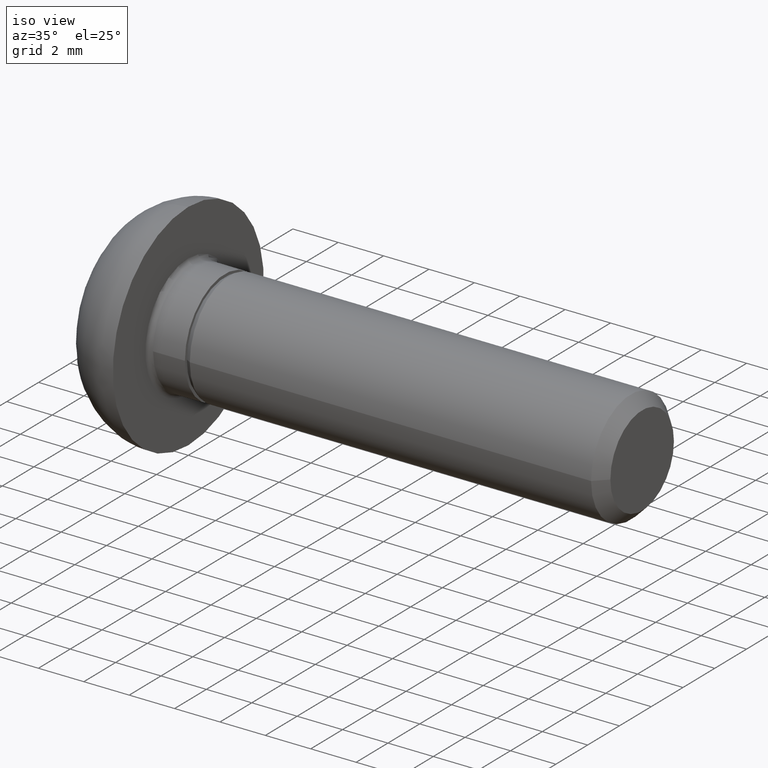
[diagram: clean part render]
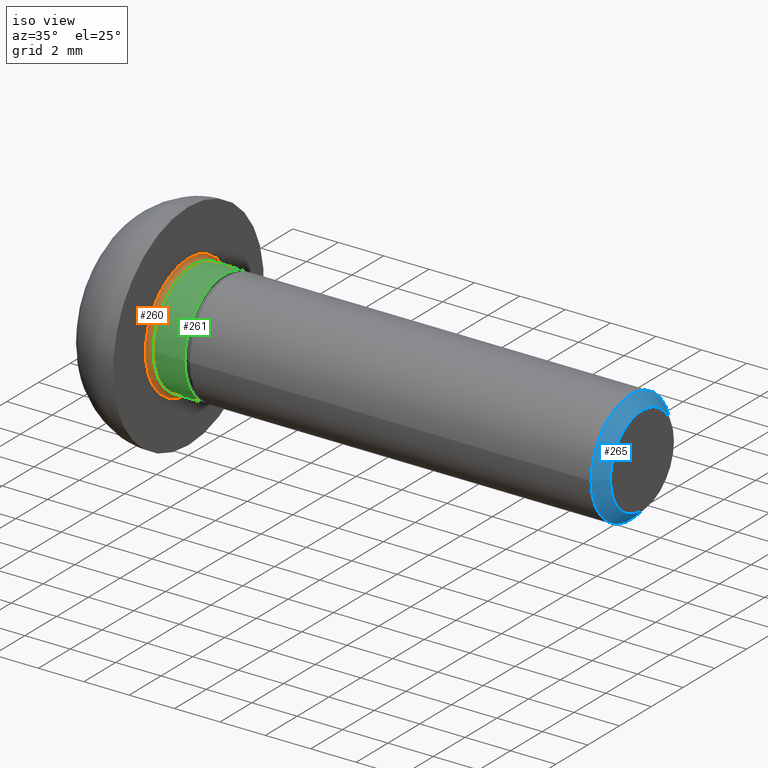
[diagram: same view with three faces highlighted in distinct colors, each labeled with its STEP entity id]
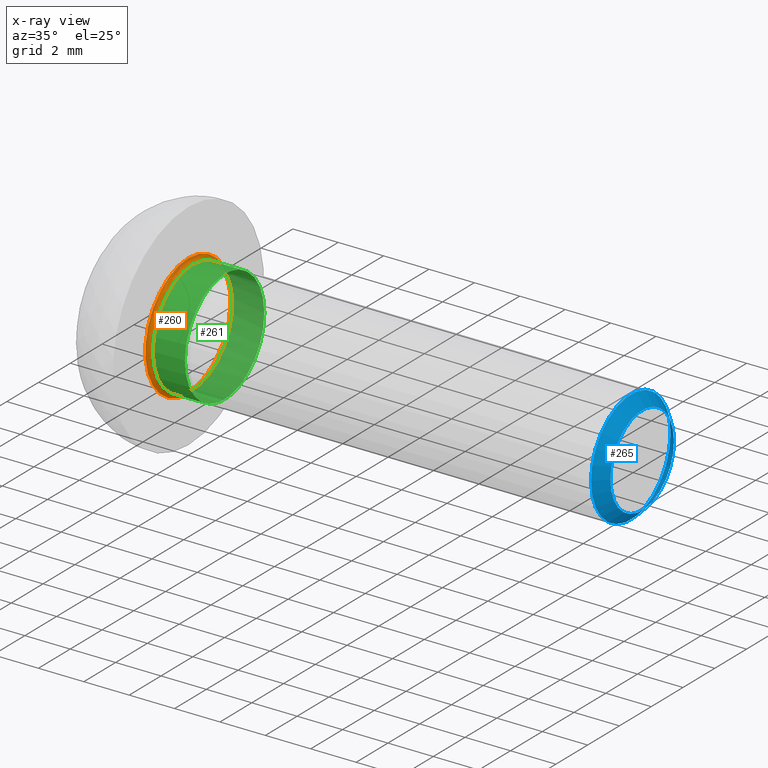
[diagram: x-ray of the same camera — body ghosted, the three highlighted faces saturated]
A machine part, iso view with three faces highlighted in distinct colors.
The next image is the same camera in x-ray (body ghosted, the three faces saturated) — at least one of them is partly hidden behind the body in this view.
Their STEP definitions:

[orange] entity #260 — the highlighted toroidal blend (fillet) surface has major radius 2.7 mm and minor (blend) radius 0.2 mm.
#20=TOROIDAL_SURFACE('',#303,2.7,0.2);
#27=CIRCLE('',#302,2.7);
#28=CIRCLE('',#304,0.2);
#29=CIRCLE('',#305,2.5);
#30=CIRCLE('',#306,2.5);
#45=FACE_OUTER_BOUND('',#63,.T.);
#63=EDGE_LOOP('',(#202,#203,#204,#205,#206));
#128=VERTEX_POINT('',#477);
#129=VERTEX_POINT('',#480);
#130=VERTEX_POINT('',#482);
#158=EDGE_CURVE('',#128,#128,#27,.T.);
#159=EDGE_CURVE('',#128,#129,#28,.T.);
#160=EDGE_CURVE('',#130,#129,#29,.T.);
#161=EDGE_CURVE('',#129,#130,#30,.T.);
#202=ORIENTED_EDGE('',*,*,#158,.T.);
#203=ORIENTED_EDGE('',*,*,#159,.T.);
#204=ORIENTED_EDGE('',*,*,#160,.F.);
#205=ORIENTED_EDGE('',*,*,#161,.F.);
#206=ORIENTED_EDGE('',*,*,#159,.F.);
#260=ADVANCED_FACE('',(#45),#20,.F.);
#302=AXIS2_PLACEMENT_3D('',#478,#354,#355);
#303=AXIS2_PLACEMENT_3D('',#479,#356,#357);
#304=AXIS2_PLACEMENT_3D('',#481,#358,#359);
#305=AXIS2_PLACEMENT_3D('',#483,#360,#361);
#306=AXIS2_PLACEMENT_3D('',#484,#362,#363);
#354=DIRECTION('center_axis',(1.,9.36676212591553E-17,0.));
#355=DIRECTION('ref_axis',(0.,1.,0.));
#356=DIRECTION('center_axis',(1.,9.36676212591553E-17,0.));
#357=DIRECTION('ref_axis',(0.,0.,-1.));
#358=DIRECTION('center_axis',(9.36676212591553E-17,-1.,-1.22464679914735E-16));
#359=DIRECTION('ref_axis',(0.,-1.22464679914735E-16,1.));
#360=DIRECTION('center_axis',(1.,9.36676212591553E-17,0.));
#361=DIRECTION('ref_axis',(0.,1.,0.));
#362=DIRECTION('center_axis',(1.,9.36676212591553E-17,0.));
#363=DIRECTION('ref_axis',(0.,1.,0.));
#477=CARTESIAN_POINT('',(2.22044604925031E-15,-2.56983420927193E-15,2.7));
#478=CARTESIAN_POINT('Origin',(2.22044604925031E-15,-1.87335242518311E-15,
0.));
#479=CARTESIAN_POINT('Origin',(0.200000000000002,-2.22044604925031E-15,
0.));
#480=CARTESIAN_POINT('',(0.200000000000002,-2.52660774903715E-15,2.5));
#481=CARTESIAN_POINT('Origin',(0.200000000000002,-2.5511006850201E-15,2.7));
#482=CARTESIAN_POINT('',(0.200000000000002,-2.5,-3.06161699786839E-16));
#483=CARTESIAN_POINT('Origin',(0.200000000000002,-1.85461890093128E-15,
0.));
#484=CARTESIAN_POINT('Origin',(0.200000000000002,-1.85461890093128E-15,
0.));

[blue] entity #265 — the highlighted conical surface has half-angle 45 deg.
#16=CONICAL_SURFACE('',#315,2.25,0.785398163397446);
#34=CIRCLE('',#314,2.5);
#35=CIRCLE('',#316,2.00000000000001);
#50=FACE_OUTER_BOUND('',#69,.T.);
#69=EDGE_LOOP('',(#222,#223,#224,#225));
#89=LINE('',#503,#106);
#106=VECTOR('',#387,2.25);
#134=VERTEX_POINT('',#497);
#135=VERTEX_POINT('',#501);
#167=EDGE_CURVE('',#134,#134,#34,.T.);
#169=EDGE_CURVE('',#135,#135,#35,.T.);
#170=EDGE_CURVE('',#135,#134,#89,.T.);
#222=ORIENTED_EDGE('',*,*,#169,.F.);
#223=ORIENTED_EDGE('',*,*,#170,.T.);
#224=ORIENTED_EDGE('',*,*,#167,.T.);
#225=ORIENTED_EDGE('',*,*,#170,.F.);
#265=ADVANCED_FACE('',(#50),#16,.T.);
#314=AXIS2_PLACEMENT_3D('',#498,#380,#381);
#315=AXIS2_PLACEMENT_3D('',#500,#383,#384);
#316=AXIS2_PLACEMENT_3D('',#502,#385,#386);
#380=DIRECTION('center_axis',(1.,9.36676212591553E-17,0.));
#381=DIRECTION('ref_axis',(0.,1.,0.));
#383=DIRECTION('center_axis',(-1.,-9.36676212591553E-17,0.));
#384=DIRECTION('ref_axis',(0.,1.,0.));
#385=DIRECTION('center_axis',(1.,9.36676212591553E-17,0.));
#386=DIRECTION('ref_axis',(0.,1.,0.));
#387=DIRECTION('',(-0.707106781186549,-0.707106781186546,-8.65956056235491E-17));
#497=CARTESIAN_POINT('',(19.5,-2.5,-3.06161699786839E-16));
#498=CARTESIAN_POINT('Origin',(19.5,-4.68338106295774E-17,0.));
#500=CARTESIAN_POINT('Origin',(19.75,-2.34169053147888E-17,0.));
#501=CARTESIAN_POINT('',(20.,-2.00000000000001,-2.44929359829471E-16));
#502=CARTESIAN_POINT('Origin',(20.,0.,0.));
#503=CARTESIAN_POINT('',(19.75,-2.25,-2.75545529808155E-16));

[green] entity #261 — the highlighted cylindrical surface (bore or boss wall) has radius 2.5 mm, axis along (1, 0, 0).
#18=CYLINDRICAL_SURFACE('',#307,2.5);
#29=CIRCLE('',#305,2.5);
#30=CIRCLE('',#306,2.5);
#31=CIRCLE('',#308,2.5);
#46=FACE_OUTER_BOUND('',#64,.T.);
#64=EDGE_LOOP('',(#207,#208,#209,#210,#211));
#86=LINE('',#488,#103);
#103=VECTOR('',#368,2.5);
#129=VERTEX_POINT('',#480);
#130=VERTEX_POINT('',#482);
#131=VERTEX_POINT('',#486);
#160=EDGE_CURVE('',#130,#129,#29,.T.);
#161=EDGE_CURVE('',#129,#130,#30,.T.);
#162=EDGE_CURVE('',#131,#131,#31,.T.);
#163=EDGE_CURVE('',#131,#130,#86,.T.);
#207=ORIENTED_EDGE('',*,*,#162,.F.);
#208=ORIENTED_EDGE('',*,*,#163,.T.);
#209=ORIENTED_EDGE('',*,*,#160,.T.);
#210=ORIENTED_EDGE('',*,*,#161,.T.);
#211=ORIENTED_EDGE('',*,*,#163,.F.);
#261=ADVANCED_FACE('',(#46),#18,.T.);
#305=AXIS2_PLACEMENT_3D('',#483,#360,#361);
#306=AXIS2_PLACEMENT_3D('',#484,#362,#363);
#307=AXIS2_PLACEMENT_3D('',#485,#364,#365);
#308=AXIS2_PLACEMENT_3D('',#487,#366,#367);
#360=DIRECTION('center_axis',(1.,9.36676212591553E-17,0.));
#361=DIRECTION('ref_axis',(0.,1.,0.));
#362=DIRECTION('center_axis',(1.,9.36676212591553E-17,0.));
#363=DIRECTION('ref_axis',(0.,1.,0.));
#364=DIRECTION('center_axis',(1.,9.36676212591553E-17,0.));
#365=DIRECTION('ref_axis',(0.,1.,0.));
#366=DIRECTION('center_axis',(1.,9.36676212591553E-17,0.));
#367=DIRECTION('ref_axis',(0.,1.,0.));
#368=DIRECTION('',(-1.,-9.36676212591553E-17,0.));
#480=CARTESIAN_POINT('',(0.200000000000002,-2.52660774903715E-15,2.5));
#482=CARTESIAN_POINT('',(0.200000000000002,-2.5,-3.06161699786839E-16));
#483=CARTESIAN_POINT('Origin',(0.200000000000002,-1.85461890093128E-15,
0.));
#484=CARTESIAN_POINT('Origin',(0.200000000000002,-1.85461890093128E-15,
0.));
#485=CARTESIAN_POINT('Origin',(0.900000000000004,-1.78905156604987E-15,
0.));
#486=CARTESIAN_POINT('',(1.60000000000001,-2.5,-3.06161699786839E-16));
#487=CARTESIAN_POINT('Origin',(1.60000000000001,-1.72348423116846E-15,0.));
#488=CARTESIAN_POINT('',(0.900000000000004,-2.5,-3.06161699786839E-16));